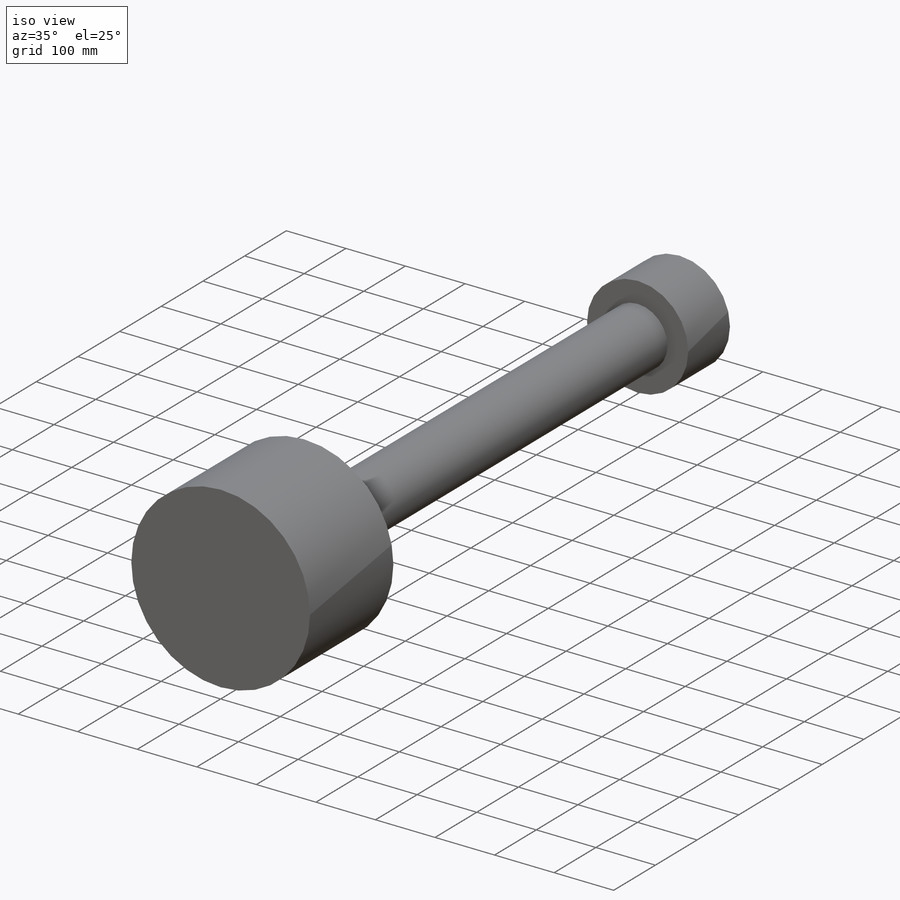
[diagram: iso view]
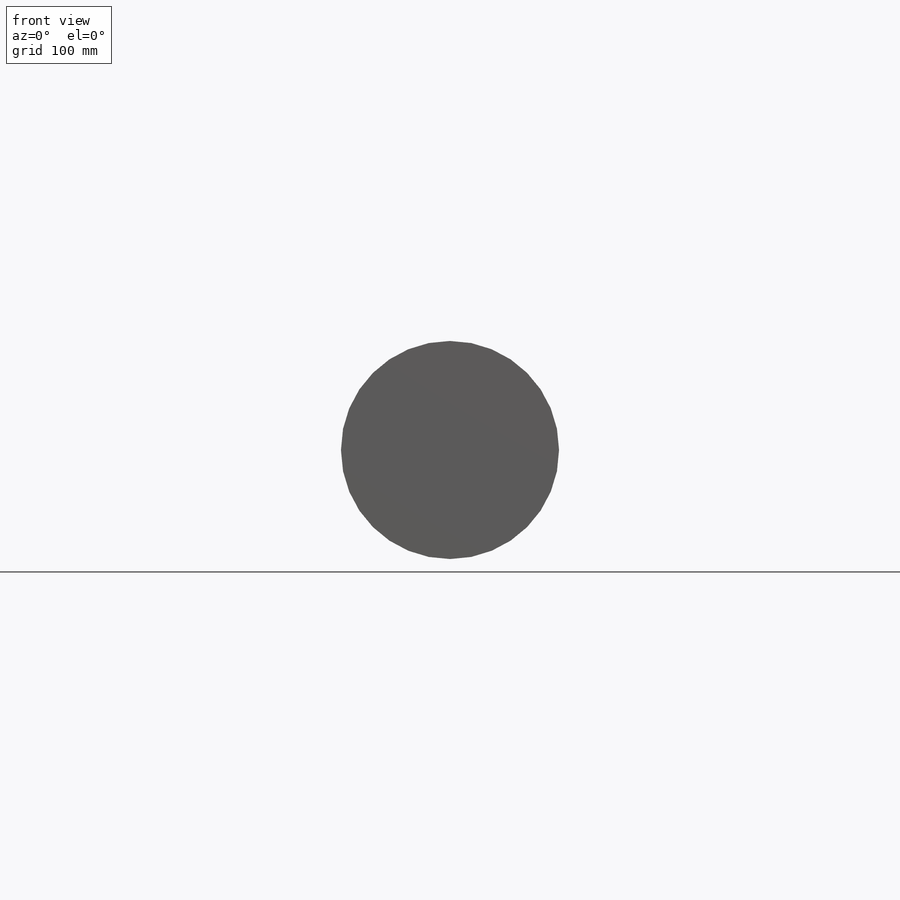
[diagram: front view]
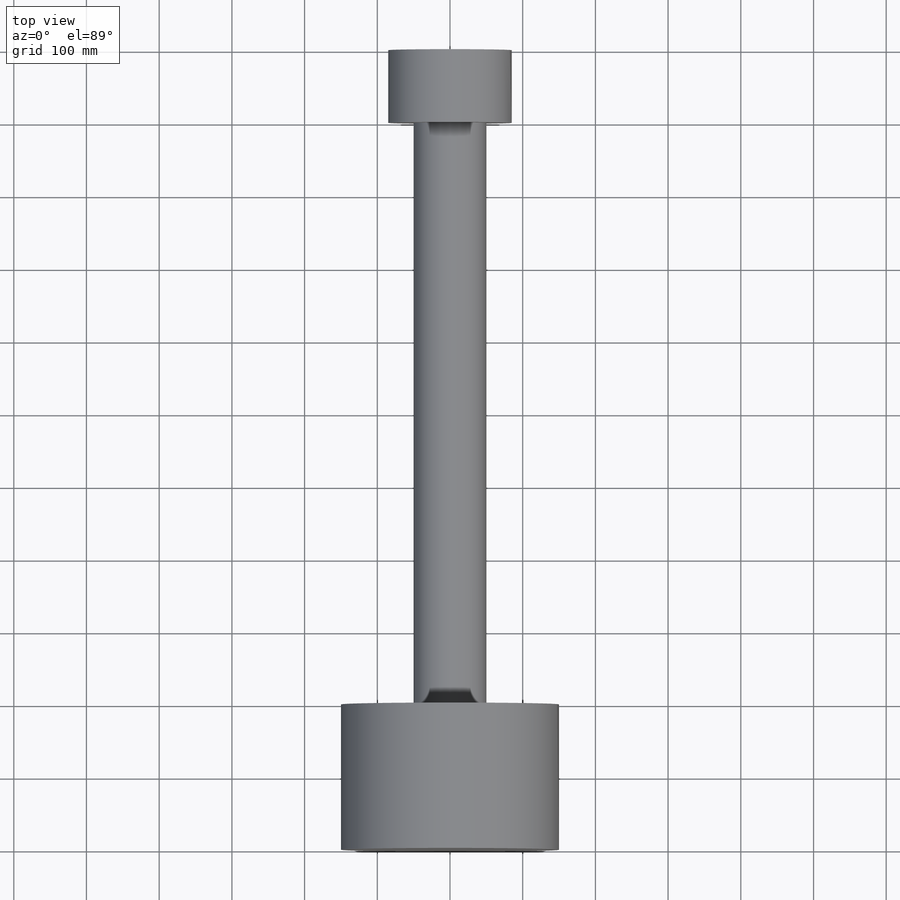
[diagram: top view]
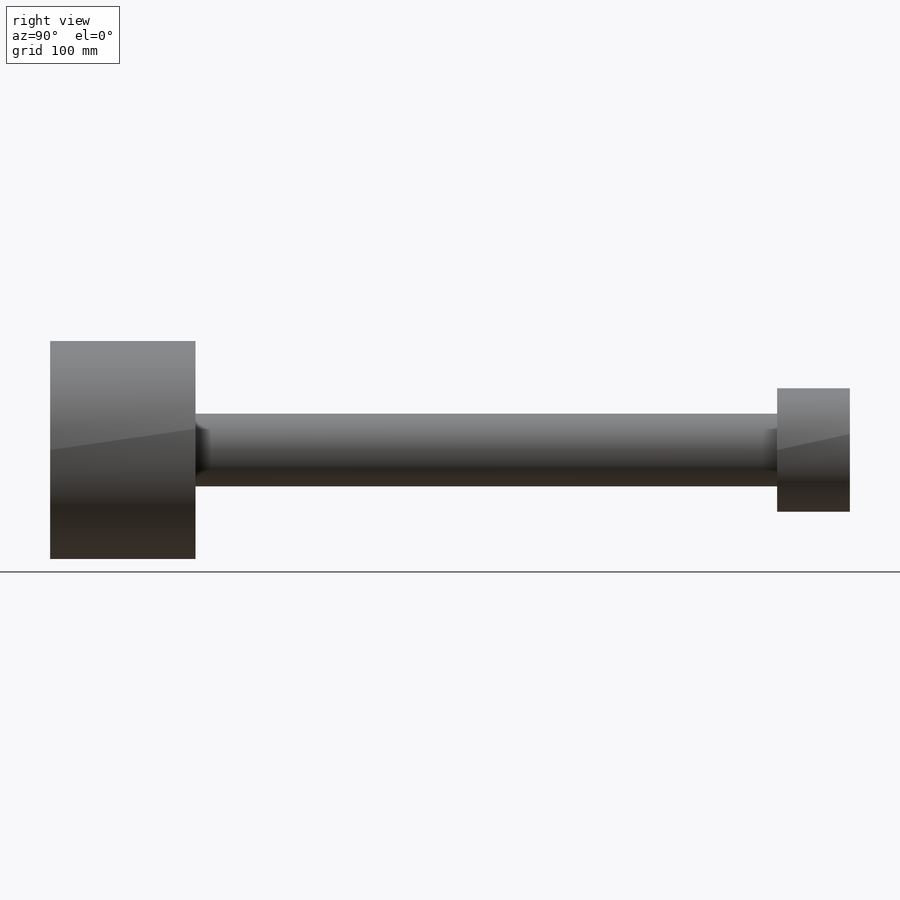
[diagram: right view]
SOLIDWORKS PART (.sldprt)
format: sldprt  version: not decoded by parser v0  size: 124,416 bytes
history: native  units: mm
features: sketch x3, extrude x3, material x1 (+16 scaffold rows collapsed)
feature tree (23):
  scaffold x16  (default folders/planes/origin — collapsed)
  material  "Material <not specified>"
  sketch  "Sketch2"  dims[D1=75.0mm]
  extrude  "Boss-Extrude1"  Depth=1000mm
  sketch  "Sketch3"  dims[D1=~274.899388mm]
  extrude  "Boss-Extrude2"  Depth=200mm
  sketch  "Sketch4"  dims[D1=75.0mm]
  extrude  "Boss-Extrude3"  Depth=100mm
decode coverage: 6 of 6 modeling features carry decoded parameters
note: ~ marks probable driven/reference dimensions
note: suppression state not decoded; provenance and decode notes live in map.json
